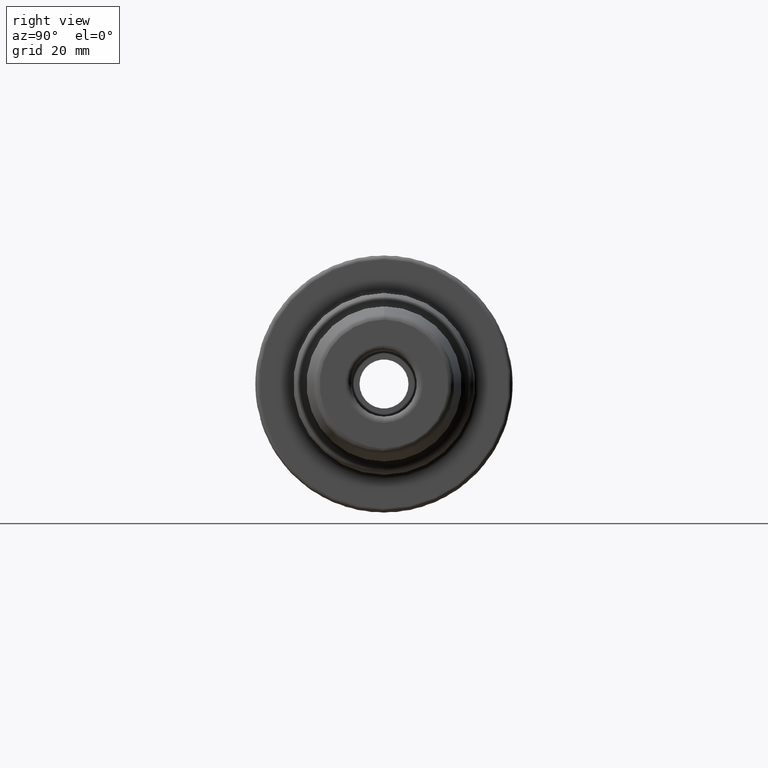
[diagram: clean part render]
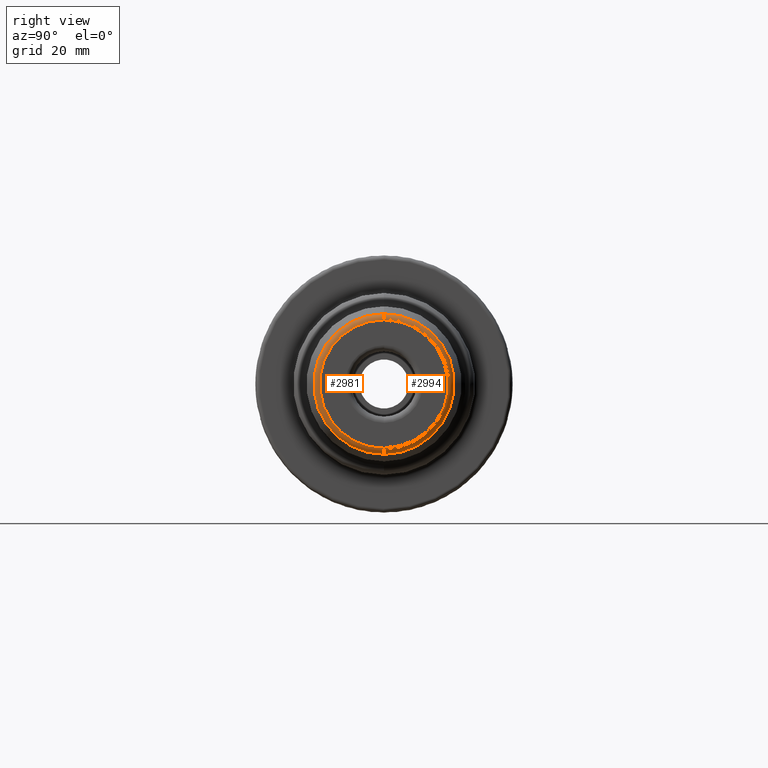
[diagram: same view with one multi-face feature highlighted, each face labeled with its STEP entity id]
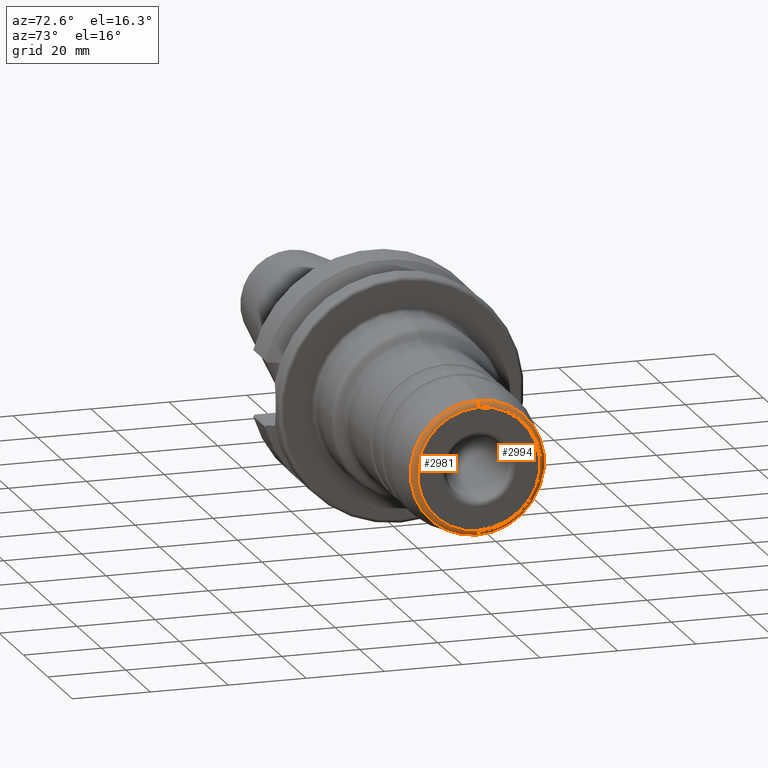
[diagram: same view with one multi-face feature highlighted, each face labeled with its STEP entity id]
A machine part, right view. The highlighted faces form ONE feature: a constant-radius fillet chain: 2 tangent blend faces with common blend radius 1.5 mm. The faces share edges in the B-rep.
A second angle (auxiliary view) of the same feature is appended — it is thin or edge-on in the first view.
Their STEP definitions:
[1] entity #2994 (Torus):
#379=CARTESIAN_POINT('',(8.85E1,0.E0,-1.574135055323E1));
#380=DIRECTION('',(0.E0,1.E0,0.E0));
#381=DIRECTION('',(1.E0,0.E0,0.E0));
#382=AXIS2_PLACEMENT_3D('',#379,#380,#381);
#384=CARTESIAN_POINT('',(8.85E1,0.E0,1.574135055323E1));
#385=DIRECTION('',(0.E0,-1.E0,0.E0));
#386=DIRECTION('',(1.E0,0.E0,0.E0));
#387=AXIS2_PLACEMENT_3D('',#384,#385,#386);
#394=CARTESIAN_POINT('',(9.E1,0.E0,0.E0));
#395=DIRECTION('',(1.E0,0.E0,0.E0));
#396=DIRECTION('',(0.E0,0.E0,-1.E0));
#397=AXIS2_PLACEMENT_3D('',#394,#395,#396);
#399=CARTESIAN_POINT('',(8.876047226650E1,0.E0,0.E0));
#400=DIRECTION('',(1.E0,0.E0,0.E0));
#401=DIRECTION('',(0.E0,0.E0,-1.E0));
#402=AXIS2_PLACEMENT_3D('',#399,#400,#401);
#2247=CARTESIAN_POINT('',(9.E1,0.E0,-1.574135055323E1));
#2248=CARTESIAN_POINT('',(8.876047226650E1,0.E0,-1.721856218275E1));
#2249=VERTEX_POINT('',#2247);
#2250=VERTEX_POINT('',#2248);
#2307=CARTESIAN_POINT('',(9.E1,0.E0,1.574135055323E1));
#2308=CARTESIAN_POINT('',(8.876047226650E1,0.E0,1.721856218275E1));
#2309=VERTEX_POINT('',#2307);
#2310=VERTEX_POINT('',#2308);
#2982=CARTESIAN_POINT('',(8.85E1,0.E0,0.E0));
#2983=DIRECTION('',(1.E0,0.E0,0.E0));
#2984=DIRECTION('',(0.E0,0.E0,1.E0));
#2985=AXIS2_PLACEMENT_3D('',#2982,#2983,#2984);
#2986=TOROIDAL_SURFACE('',#2985,1.574135055323E1,1.5E0);
#2987=ORIENTED_EDGE('',*,*,#2972,.F.);
#2988=ORIENTED_EDGE('',*,*,#2958,.T.);
#2989=ORIENTED_EDGE('',*,*,#2976,.T.);
#2991=ORIENTED_EDGE('',*,*,#2990,.F.);
#2992=EDGE_LOOP('',(#2987,#2988,#2989,#2991));
#2993=FACE_OUTER_BOUND('',#2992,.F.);
#2994=ADVANCED_FACE('',(#2993),#2986,.T.);
#383=CIRCLE('',#382,1.5E0);
#388=CIRCLE('',#387,1.5E0);
#398=CIRCLE('',#397,1.574135055323E1);
#403=CIRCLE('',#402,1.721856218275E1);
#2958=EDGE_CURVE('',#2249,#2309,#398,.T.);
#2972=EDGE_CURVE('',#2249,#2250,#383,.T.);
#2976=EDGE_CURVE('',#2309,#2310,#388,.T.);
#2990=EDGE_CURVE('',#2250,#2310,#403,.T.);
[2] entity #2981 (Torus):
#379=CARTESIAN_POINT('',(8.85E1,0.E0,-1.574135055323E1));
#380=DIRECTION('',(0.E0,1.E0,0.E0));
#381=DIRECTION('',(1.E0,0.E0,0.E0));
#382=AXIS2_PLACEMENT_3D('',#379,#380,#381);
#384=CARTESIAN_POINT('',(8.85E1,0.E0,1.574135055323E1));
#385=DIRECTION('',(0.E0,-1.E0,0.E0));
#386=DIRECTION('',(1.E0,0.E0,0.E0));
#387=AXIS2_PLACEMENT_3D('',#384,#385,#386);
#389=CARTESIAN_POINT('',(9.E1,0.E0,0.E0));
#390=DIRECTION('',(-1.E0,0.E0,0.E0));
#391=DIRECTION('',(0.E0,0.E0,-1.E0));
#392=AXIS2_PLACEMENT_3D('',#389,#390,#391);
#412=CARTESIAN_POINT('',(8.876047226650E1,0.E0,0.E0));
#413=DIRECTION('',(-1.E0,0.E0,0.E0));
#414=DIRECTION('',(0.E0,0.E0,-1.E0));
#415=AXIS2_PLACEMENT_3D('',#412,#413,#414);
#2247=CARTESIAN_POINT('',(9.E1,0.E0,-1.574135055323E1));
#2248=CARTESIAN_POINT('',(8.876047226650E1,0.E0,-1.721856218275E1));
#2249=VERTEX_POINT('',#2247);
#2250=VERTEX_POINT('',#2248);
#2307=CARTESIAN_POINT('',(9.E1,0.E0,1.574135055323E1));
#2308=CARTESIAN_POINT('',(8.876047226650E1,0.E0,1.721856218275E1));
#2309=VERTEX_POINT('',#2307);
#2310=VERTEX_POINT('',#2308);
#2967=CARTESIAN_POINT('',(8.85E1,0.E0,0.E0));
#2968=DIRECTION('',(1.E0,0.E0,0.E0));
#2969=DIRECTION('',(0.E0,0.E0,1.E0));
#2970=AXIS2_PLACEMENT_3D('',#2967,#2968,#2969);
#2971=TOROIDAL_SURFACE('',#2970,1.574135055323E1,1.5E0);
#2973=ORIENTED_EDGE('',*,*,#2972,.T.);
#2975=ORIENTED_EDGE('',*,*,#2974,.T.);
#2977=ORIENTED_EDGE('',*,*,#2976,.F.);
#2978=ORIENTED_EDGE('',*,*,#2956,.F.);
#2979=EDGE_LOOP('',(#2973,#2975,#2977,#2978));
#2980=FACE_OUTER_BOUND('',#2979,.F.);
#2981=ADVANCED_FACE('',(#2980),#2971,.T.);
#383=CIRCLE('',#382,1.5E0);
#388=CIRCLE('',#387,1.5E0);
#393=CIRCLE('',#392,1.574135055323E1);
#416=CIRCLE('',#415,1.721856218275E1);
#2956=EDGE_CURVE('',#2249,#2309,#393,.T.);
#2972=EDGE_CURVE('',#2249,#2250,#383,.T.);
#2974=EDGE_CURVE('',#2250,#2310,#416,.T.);
#2976=EDGE_CURVE('',#2309,#2310,#388,.T.);